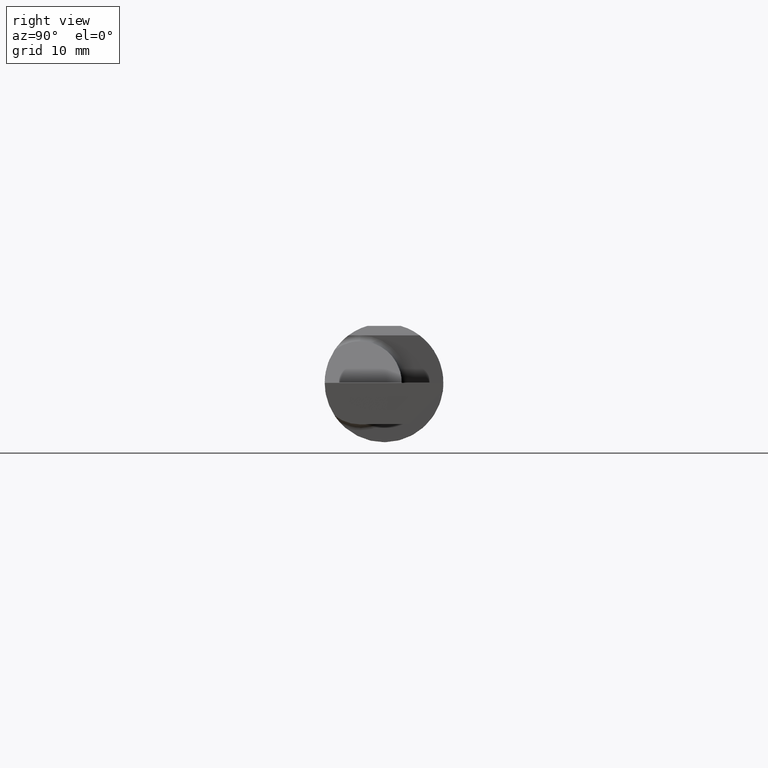
[diagram: clean part render]
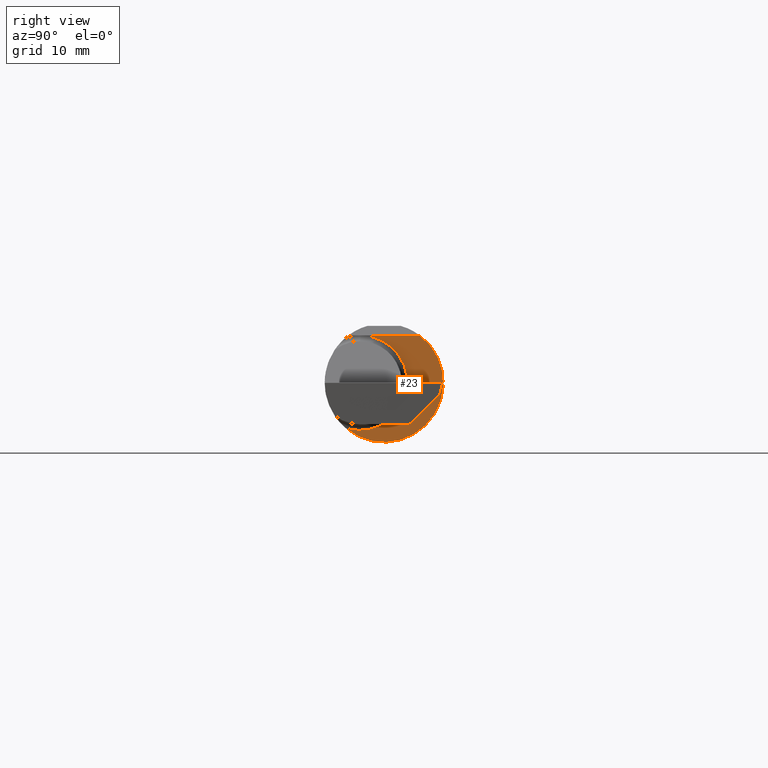
[diagram: same view with one face highlighted and labeled with its STEP entity id]
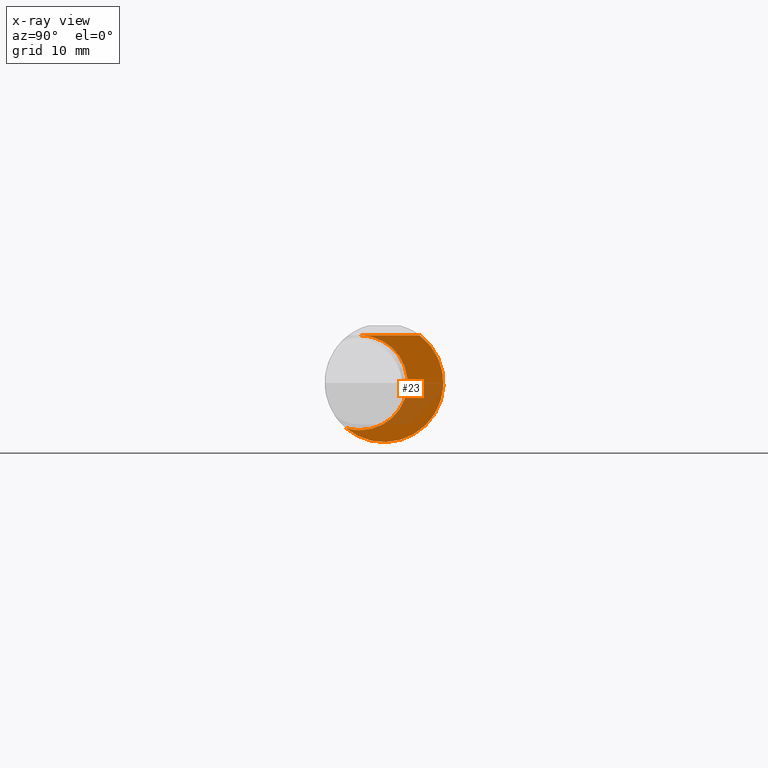
[diagram: x-ray of the same camera — body ghosted, the highlighted face saturated]
A machine part, right view. The second image highlights one B-rep face of the part: STEP entity #23.
The next image is the same camera in x-ray: the body ghosted, the highlighted face saturated — about 28% of this face is hidden behind the body in this view.
In plain terms, the highlighted planar face has unit normal (1, 0, 0).
Its self-contained STEP definition (entity closure, byte-faithful):
#23 = ADVANCED_FACE ( 'NONE', ( #532 ), #88, .T. ) ;
#37 = AXIS2_PLACEMENT_3D ( 'NONE', #503, #684, #118 ) ;
#85 = EDGE_CURVE ( 'NONE', #373, #709, #327, .T. ) ;
#88 = PLANE ( 'NONE',  #381 ) ;
#109 = AXIS2_PLACEMENT_3D ( 'NONE', #594, #337, #790 ) ;
#118 = DIRECTION ( 'NONE',  ( 0.000000000000000000, 0.000000000000000000, 1.000000000000000000 ) ) ;
#155 = DIRECTION ( 'NONE',  ( 1.000000000000000000, 0.000000000000000000, 0.000000000000000000 ) ) ;
#159 = CARTESIAN_POINT ( 'NONE',  ( 2.450000000000000178, 0.1497498664440119198, 0.2000000000000015099 ) ) ;
#218 = CARTESIAN_POINT ( 'NONE',  ( 2.450000000000000178, 0.2741500000000000048, 0.000000000000000000 ) ) ;
#242 = DIRECTION ( 'NONE',  ( 1.000000000000000000, 0.000000000000000000, 0.000000000000000000 ) ) ;
#252 = CARTESIAN_POINT ( 'NONE',  ( 2.450000000000000178, -0.1616050818046604332, -0.1905487340154980169 ) ) ;
#254 = VERTEX_POINT ( 'NONE', #159 ) ;
#300 = CARTESIAN_POINT ( 'NONE',  ( 2.450000000000000178, -0.1008499999999999674, 0.2000000000000015099 ) ) ;
#305 = EDGE_CURVE ( 'NONE', #254, #627, #384, .T. ) ;
#327 = CIRCLE ( 'NONE', #109, 0.1999999999999999833 ) ;
#337 = DIRECTION ( 'NONE',  ( -1.000000000000000000, -0.000000000000000000, -0.000000000000000000 ) ) ;
#340 = AXIS2_PLACEMENT_3D ( 'NONE', #640, #242, #499 ) ;
#362 = EDGE_CURVE ( 'NONE', #709, #254, #448, .T. ) ;
#373 = VERTEX_POINT ( 'NONE', #564 ) ;
#381 = AXIS2_PLACEMENT_3D ( 'NONE', #218, #155, #653 ) ;
#384 = LINE ( 'NONE', #766, #538 ) ;
#425 = ORIENTED_EDGE ( 'NONE', *, *, #747, .T. ) ;
#448 = CIRCLE ( 'NONE', #340, 0.2498499999999999888 ) ;
#453 = DIRECTION ( 'NONE',  ( 0.000000000000000000, -1.000000000000000000, 0.000000000000000000 ) ) ;
#474 = EDGE_LOOP ( 'NONE', ( #759, #679, #425, #697 ) ) ;
#499 = DIRECTION ( 'NONE',  ( 0.000000000000000000, 0.000000000000000000, -1.000000000000000000 ) ) ;
#503 = CARTESIAN_POINT ( 'NONE',  ( 2.450000000000000178, -0.1008499999999999674, 0.000000000000000000 ) ) ;
#532 = FACE_OUTER_BOUND ( 'NONE', #474, .T. ) ;
#538 = VECTOR ( 'NONE', #453, 39.37007874015748143 ) ;
#564 = CARTESIAN_POINT ( 'NONE',  ( 2.450000000000000178, -0.1008499999999999536, -0.1999999999999999833 ) ) ;
#594 = CARTESIAN_POINT ( 'NONE',  ( 2.450000000000000178, -0.1008499999999999674, 0.000000000000000000 ) ) ;
#595 = CIRCLE ( 'NONE', #37, 0.1999999999999999833 ) ;
#627 = VERTEX_POINT ( 'NONE', #300 ) ;
#640 = CARTESIAN_POINT ( 'NONE',  ( 2.450000000000000178, 0.000000000000000000, 0.000000000000000000 ) ) ;
#653 = DIRECTION ( 'NONE',  ( 0.000000000000000000, 0.000000000000000000, -1.000000000000000000 ) ) ;
#679 = ORIENTED_EDGE ( 'NONE', *, *, #305, .T. ) ;
#684 = DIRECTION ( 'NONE',  ( -1.000000000000000000, -0.000000000000000000, -0.000000000000000000 ) ) ;
#697 = ORIENTED_EDGE ( 'NONE', *, *, #85, .T. ) ;
#709 = VERTEX_POINT ( 'NONE', #252 ) ;
#747 = EDGE_CURVE ( 'NONE', #627, #373, #595, .T. ) ;
#759 = ORIENTED_EDGE ( 'NONE', *, *, #362, .T. ) ;
#766 = CARTESIAN_POINT ( 'NONE',  ( 2.450000000000000178, -0.2500000000000000555, 0.2000000000000015099 ) ) ;
#790 = DIRECTION ( 'NONE',  ( 0.000000000000000000, 0.000000000000000000, 1.000000000000000000 ) ) ;